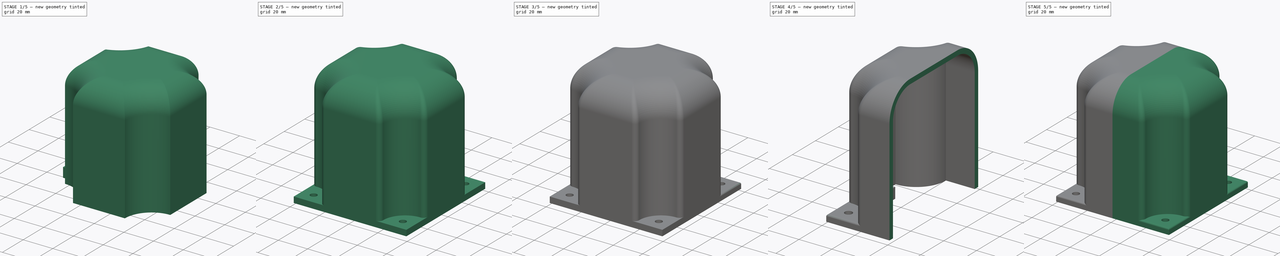
[diagram: build sequence overview — one tinted view per stage of 5, left to right]
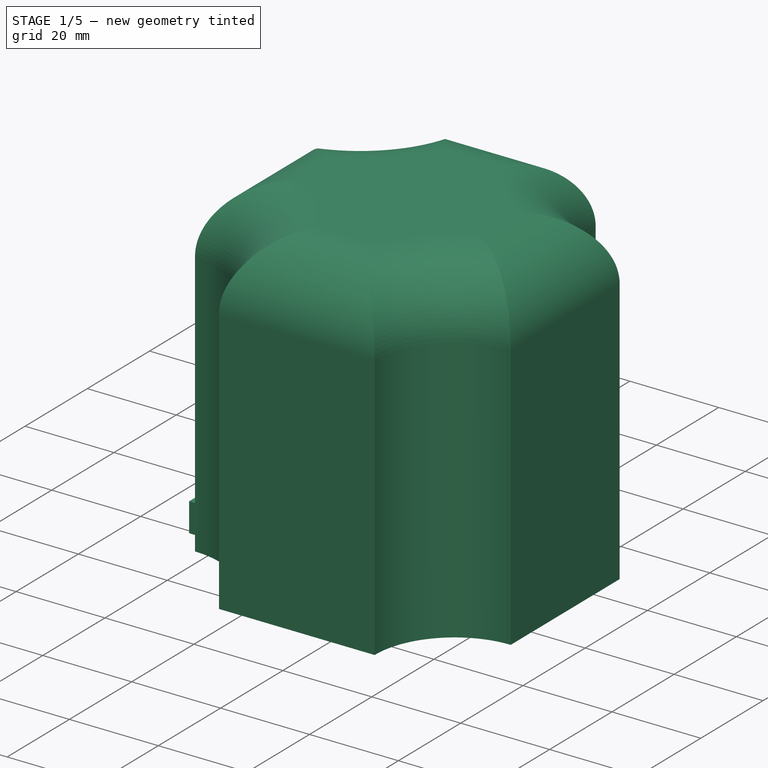
[diagram: stage 1 of 5 — iso view after this stage's code; geometry added in this stage tinted green]
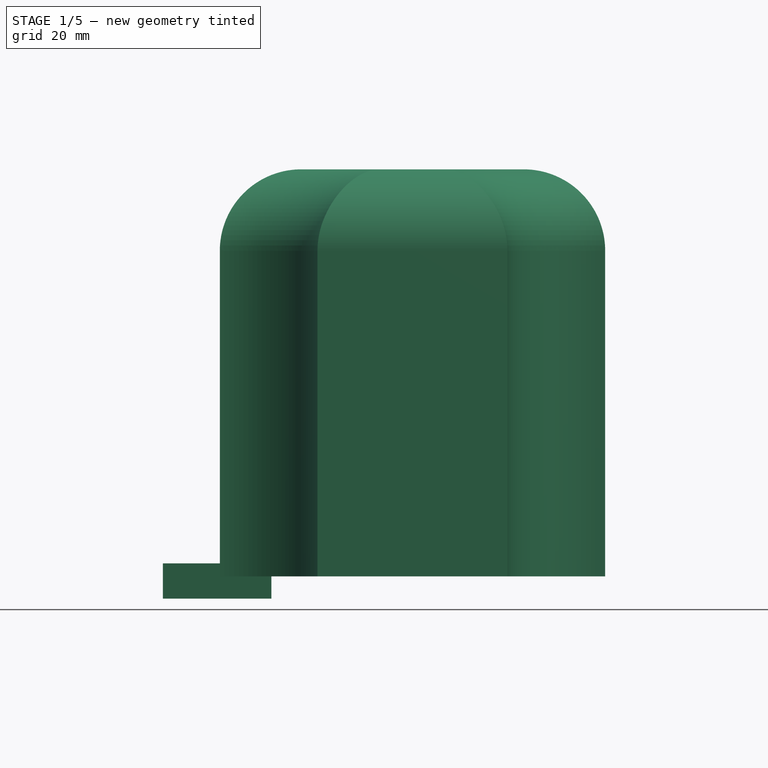
[diagram: stage 1 of 5 — front view after this stage's code; geometry added in this stage tinted green]
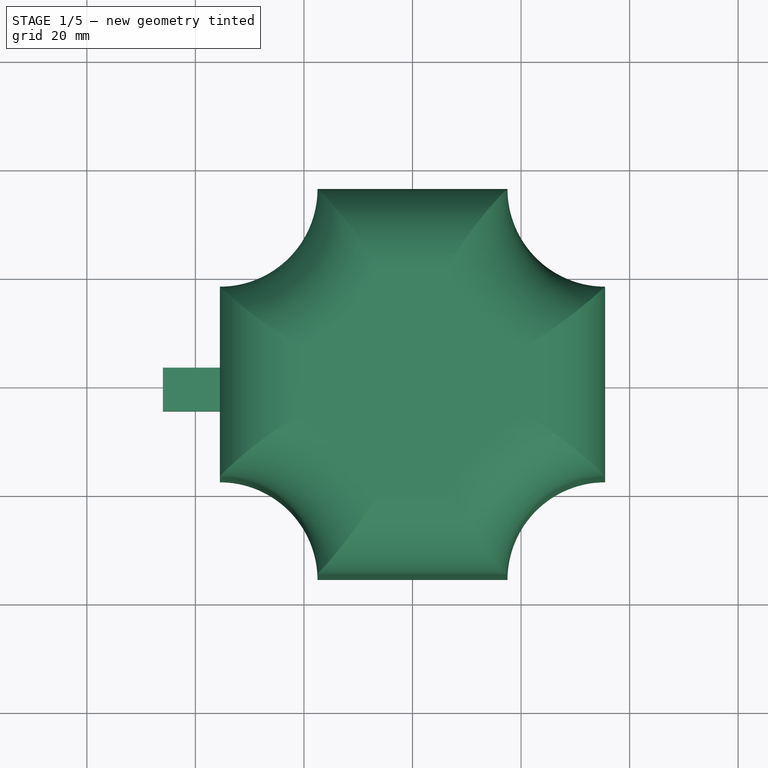
[diagram: stage 1 of 5 — top view after this stage's code; geometry added in this stage tinted green]
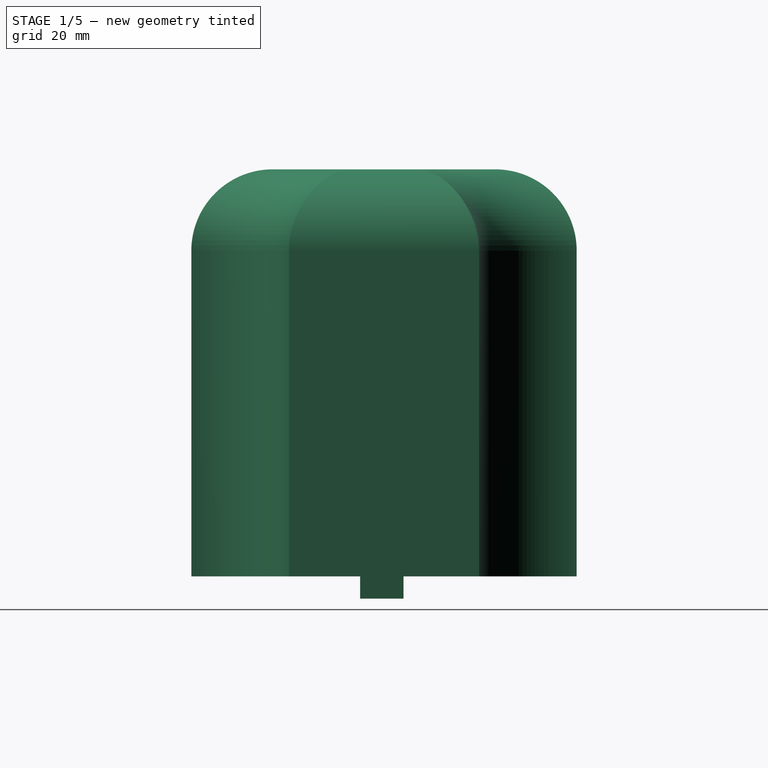
[diagram: stage 1 of 5 — right view after this stage's code; geometry added in this stage tinted green]
FCSTD DOCUMENT  (FreeCAD 0.18.4R)
Label: cover
License: All rights reserved
LicenseURL: http://en.wikipedia.org/wiki/All_rights_reserved
objects: PartDesign::Fillet×8, Sketcher::SketchObject×4, PartDesign::Pad×2, PartDesign::Pocket×2, PartDesign::Thickness×1, PartDesign::Body×1, Part::Mirroring×1, Part::Box×1, Part::Cut×1, Part::Fillet×1
note: 26 computed .brp shape members not serialized (recipe doc carries the construction recipe); baked Part::Feature solids carry a one-line shape summary decoded from their .brp

FEATURE [Sketcher::SketchObject] Sketch
  MapMode = 5
  Support = -> [XY_Plane]
  sketch-geometry (8):
    g0: LineSegment StartX=-17.5 StartY=35.5 StartZ=0 EndX=17.5 EndY=35.5 EndZ=0
    g1: LineSegment StartX=35.5 StartY=17.5 StartZ=0 EndX=35.5 EndY=-17.5 EndZ=0
    g2: LineSegment StartX=17.5 StartY=-35.5 StartZ=0 EndX=-17.5 EndY=-35.5 EndZ=0
    g3: LineSegment StartX=-35.5 StartY=17.5 StartZ=0 EndX=-35.5 EndY=-17.5 EndZ=0
    g4: ArcOfCircle CenterX=-35.5 CenterY=35.5 CenterZ=0 NormalX=0 NormalY=0 NormalZ=1 AngleXU=0 Radius=18 StartAngle=4.71239 EndAngle=6.28319
    g5: ArcOfCircle CenterX=35.5 CenterY=35.5 CenterZ=0 NormalX=0 NormalY=0 NormalZ=1 AngleXU=0 Radius=18 StartAngle=3.14159 EndAngle=4.71239
    g6: ArcOfCircle CenterX=35.5 CenterY=-35.5 CenterZ=0 NormalX=0 NormalY=0 NormalZ=1 AngleXU=0 Radius=18 StartAngle=1.5708 EndAngle=3.14159
    g7: ArcOfCircle CenterX=-35.5 CenterY=-35.5 CenterZ=0 NormalX=0 NormalY=0 NormalZ=1 AngleXU=0 Radius=18 StartAngle=2.217e-13 EndAngle=1.5708
  constraints (24):
    c: Horizontal(g0)
    c: Vertical(g3)
    c: Symmetric(g0,g2,g-1)
    c: Equal(g0,g2)
    c: Equal(g2,g1)
    c: Equal(g1,g3)
    c: Symmetric(g1,g3,g-1)
    c: Symmetric(g1,g1,g-1)
    c: Symmetric(g2,g2,g-2)
    c: Coincident(g4,g3)
    c: Coincident(g4,g0)
    c: Coincident(g5,g0)
    c: Coincident(g5,g1)
    c: Coincident(g6,g1)
    c: Coincident(g6,g2)
    c: Coincident(g7,g2)
    c: Coincident(g7,g3)
    c: Equal(g7,g6)
    c: Equal(g6,g5)
    c: Equal(g5,g4)
    c: Vertical(g5,g1)
    c: Horizontal(g6,g2)
    c: DistanceY(g1,g5) = 18
    c: DistanceY(g1,g1) = 35
FEATURE [PartDesign::Pad] Pad
  Length = 75
  Length2 = 100
  Profile = -> Sketch
  Type = 0
FEATURE [PartDesign::Fillet] Fillet
  Base = -> Pad [Face10]
  BaseFeature = -> Pad
  Radius = 15
FEATURE [Part::Box] Box  label="Cube"
  AttacherType = Attacher::AttachEngine3D
  Height = 6.5
  Length = 20
  Placement = pos=(-46,-4.4,-4.1) rot=(0,0,1;0rad)
  Width = 8
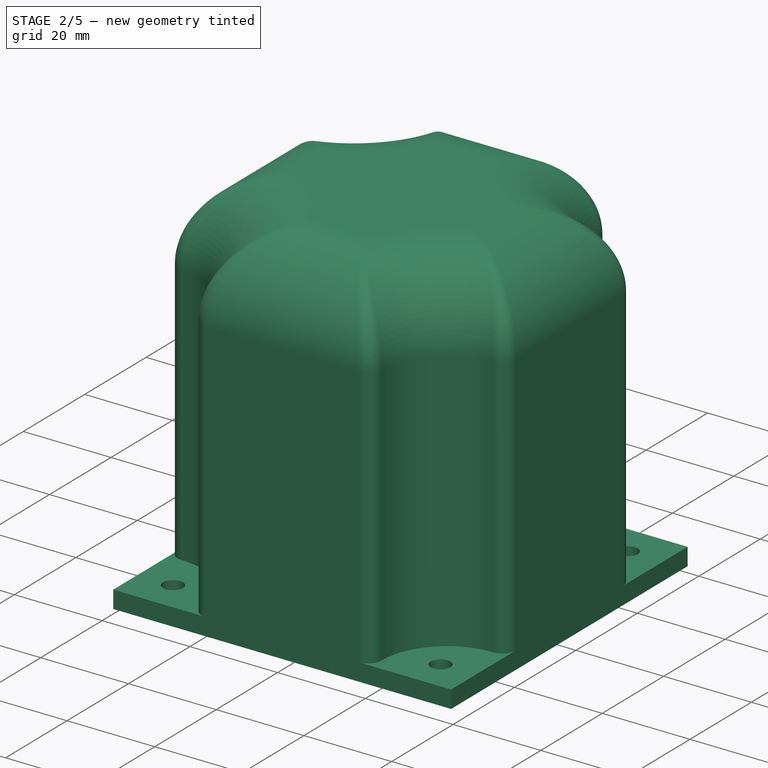
[diagram: stage 2 of 5 — iso view after this stage's code; geometry added in this stage tinted green]
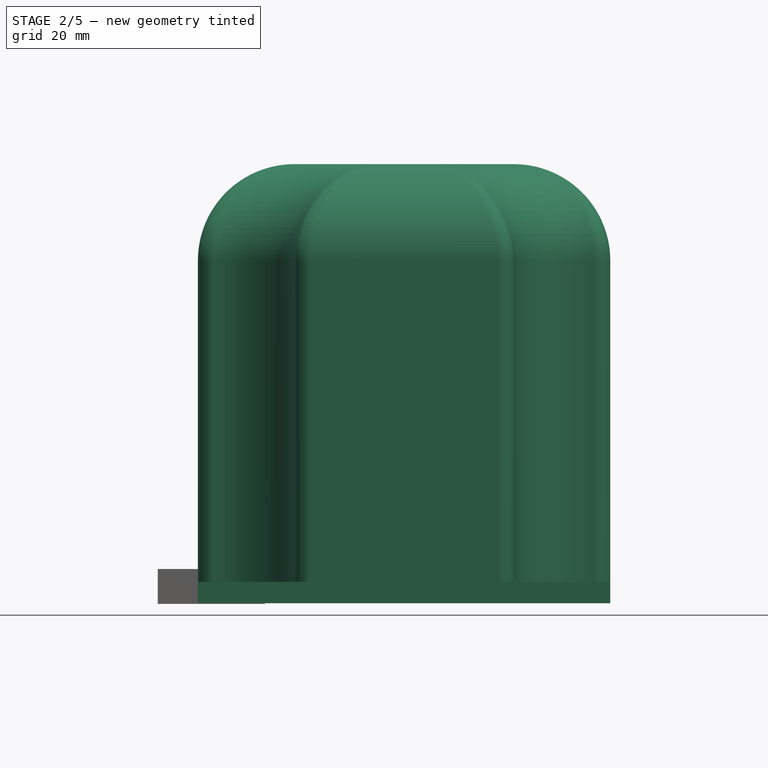
[diagram: stage 2 of 5 — front view after this stage's code; geometry added in this stage tinted green]
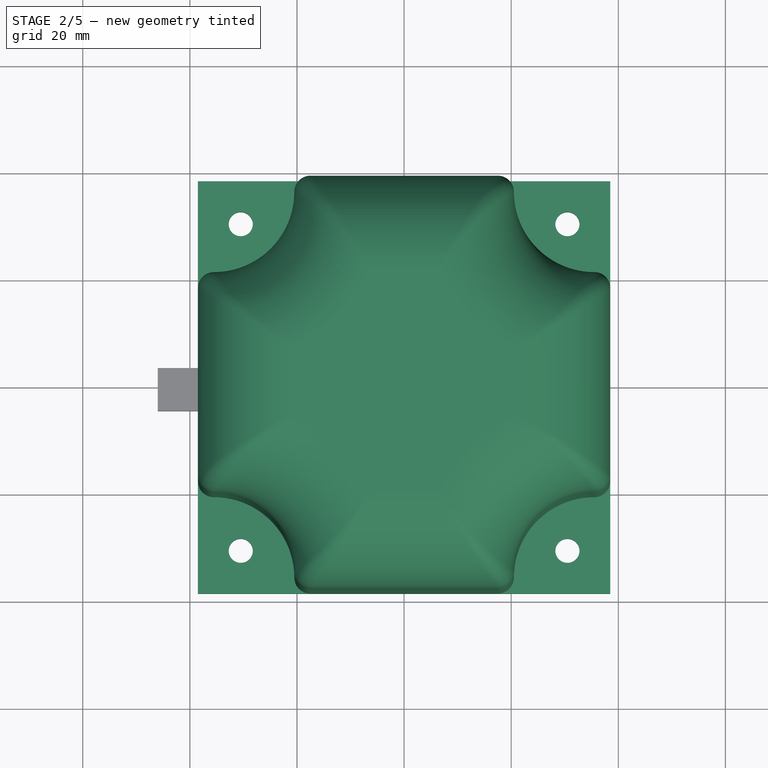
[diagram: stage 2 of 5 — top view after this stage's code; geometry added in this stage tinted green]
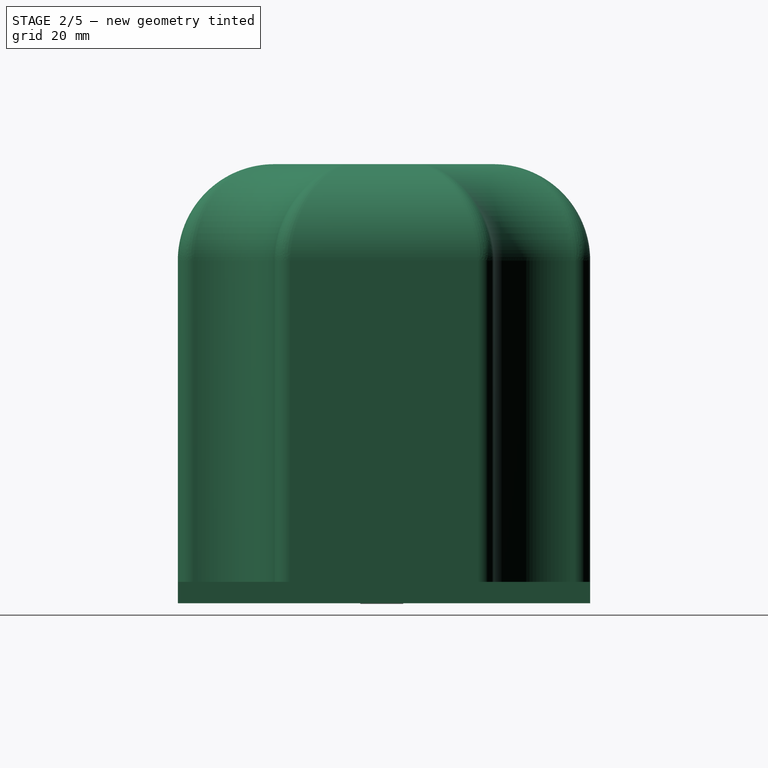
[diagram: stage 2 of 5 — right view after this stage's code; geometry added in this stage tinted green]
FEATURE [PartDesign::Thickness] Thickness
  Base = -> Fillet [Face4]
  BaseFeature = -> Fillet
  Join = 0
  Mode = 0
  Value = 3
FEATURE [Sketcher::SketchObject] Sketch001
  ExternalGeometry = -> [Thickness]
  MapMode = 5
  Placement = pos=(0,0,0) rot=(1,0,0;3.14159rad)
  Support = -> [Thickness]
  expr: Constraints[34] = Sketch.Constraints[23]
  expr: Constraints[33] = Sketch.Constraints[22]
  sketch-geometry (12):
    g0: LineSegment StartX=-38.5 StartY=38.5 StartZ=0 EndX=38.5 EndY=38.5 EndZ=0
    g1: LineSegment StartX=38.5 StartY=38.5 StartZ=0 EndX=38.5 EndY=-38.5 EndZ=0
    g2: LineSegment StartX=38.5 StartY=-38.5 StartZ=0 EndX=-38.5 EndY=-38.5 EndZ=0
    g3: LineSegment StartX=-38.5 StartY=-38.5 StartZ=0 EndX=-38.5 EndY=38.5 EndZ=0
    g4: LineSegment StartX=-17.5 StartY=35.5 StartZ=0 EndX=17.5 EndY=35.5 EndZ=0
    g5: LineSegment StartX=35.5 StartY=17.5 StartZ=0 EndX=35.5 EndY=-17.5 EndZ=0
    g6: LineSegment StartX=17.5 StartY=-35.5 StartZ=0 EndX=-17.5 EndY=-35.5 EndZ=0
    g7: LineSegment StartX=-35.5 StartY=17.5 StartZ=0 EndX=-35.5 EndY=-17.5 EndZ=0
    g8: ArcOfCircle CenterX=-35.5 CenterY=35.5 CenterZ=0 NormalX=0 NormalY=0 NormalZ=1 AngleXU=0 Radius=18 StartAngle=4.71239 EndAngle=6.28319
    g9: ArcOfCircle CenterX=35.5 CenterY=35.5 CenterZ=0 NormalX=0 NormalY=0 NormalZ=1 AngleXU=0 Radius=18 StartAngle=3.14159 EndAngle=4.71239
    g10: ArcOfCircle CenterX=35.5 CenterY=-35.5 CenterZ=0 NormalX=0 NormalY=0 NormalZ=1 AngleXU=0 Radius=18 StartAngle=1.5708 EndAngle=3.14159
    g11: ArcOfCircle CenterX=-35.5 CenterY=-35.5 CenterZ=0 NormalX=0 NormalY=0 NormalZ=1 AngleXU=0 Radius=18 StartAngle=2.217e-13 EndAngle=1.5708
  constraints (35):
    c: Coincident(g0,g1)
    c: Coincident(g1,g2)
    c: Coincident(g2,g3)
    c: Coincident(g3,g0)
    c: Horizontal(g0)
    c: Horizontal(g2)
    c: Vertical(g1)
    c: Vertical(g3)
    c: PointOnObject(g-3,g1)
    c: PointOnObject(g-4,g2)
    c: Symmetric(g1,g0,g-1)
    c: Horizontal(g4)
    c: Vertical(g7)
    c: Symmetric(g4,g6,g-1)
    c: Equal(g4,g6)
    c: Equal(g6,g5)
    c: Equal(g5,g7)
    c: Symmetric(g5,g7,g-1)
    c: Symmetric(g5,g5,g-1)
    c: Symmetric(g6,g6,g-2)
    c: Coincident(g8,g7)
    c: Coincident(g8,g4)
    c: Coincident(g9,g4)
    c: Coincident(g9,g5)
    c: Coincident(g10,g5)
    c: Coincident(g10,g6)
    c: Coincident(g11,g6)
    c: Coincident(g11,g7)
    c: Equal(g11,g10)
    c: Equal(g10,g9)
    c: Equal(g9,g8)
    c: Vertical(g9,g5)
    c: Horizontal(g10,g6)
    c: DistanceY(g5,g9) = 18
    c: DistanceY(g5,g5) = 35
FEATURE [PartDesign::Pad] Pad002
  BaseFeature = -> Thickness
  Length = 4
  Length2 = 100
  Profile = -> Sketch001
  Type = 0
FEATURE [Sketcher::SketchObject] Sketch002
  ExternalGeometry = -> [Pad002]
  MapMode = 5
  Placement = pos=(0,0,-4) rot=(1,0,0;3.14159rad)
  Support = -> [Pad002]
  sketch-geometry (4):
    g0: Circle CenterX=-30.5 CenterY=30.5 CenterZ=0 NormalX=0 NormalY=0 NormalZ=1 AngleXU=0 Radius=2.25
    g1: Circle CenterX=30.5 CenterY=30.5 CenterZ=0 NormalX=0 NormalY=0 NormalZ=1 AngleXU=0 Radius=2.25
    g2: Circle CenterX=30.5 CenterY=-30.5 CenterZ=0 NormalX=0 NormalY=0 NormalZ=1 AngleXU=0 Radius=2.25
    g3: Circle CenterX=-30.5 CenterY=-30.5 CenterZ=0 NormalX=0 NormalY=0 NormalZ=1 AngleXU=0 Radius=2.25
  constraints (9):
    c: Equal(g0,g1)
    c: Equal(g1,g2)
    c: Equal(g2,g3)
    c: Symmetric(g1,g0,g-2)
    c: Symmetric(g1,g2,g-1)
    c: Symmetric(g2,g3,g-2)
    c: Diameter(g1) = 4.5
    c: DistanceX(g1,g-4) = 8
    c: DistanceY(g1,g-4) = 8
FEATURE [PartDesign::Pocket] Pocket
  BaseFeature = -> Pad002
  Length = 5
  Length2 = 100
  Profile = -> Sketch002
  Type = 1
FEATURE [PartDesign::Fillet] Fillet001
  Base = -> Pocket [Edge65]
  BaseFeature = -> Pocket
  Radius = 0.1
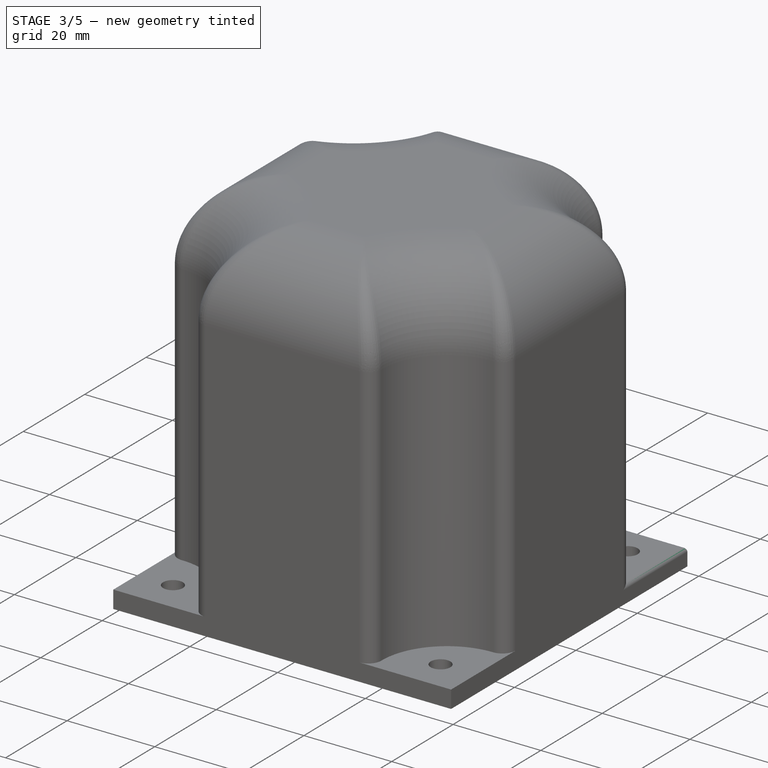
[diagram: stage 3 of 5 — iso view after this stage's code; geometry added in this stage tinted green]
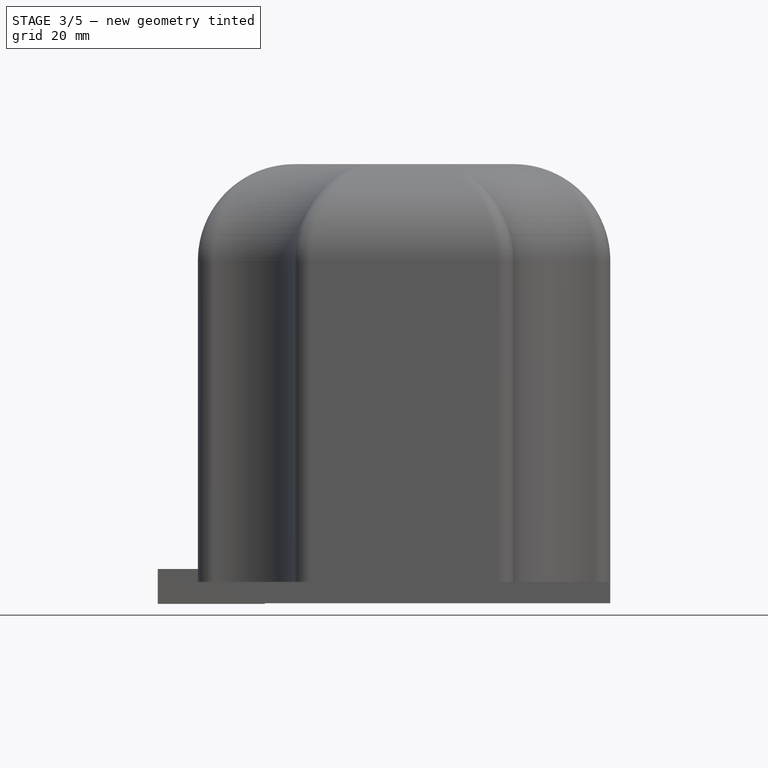
[diagram: stage 3 of 5 — front view after this stage's code; geometry added in this stage tinted green]
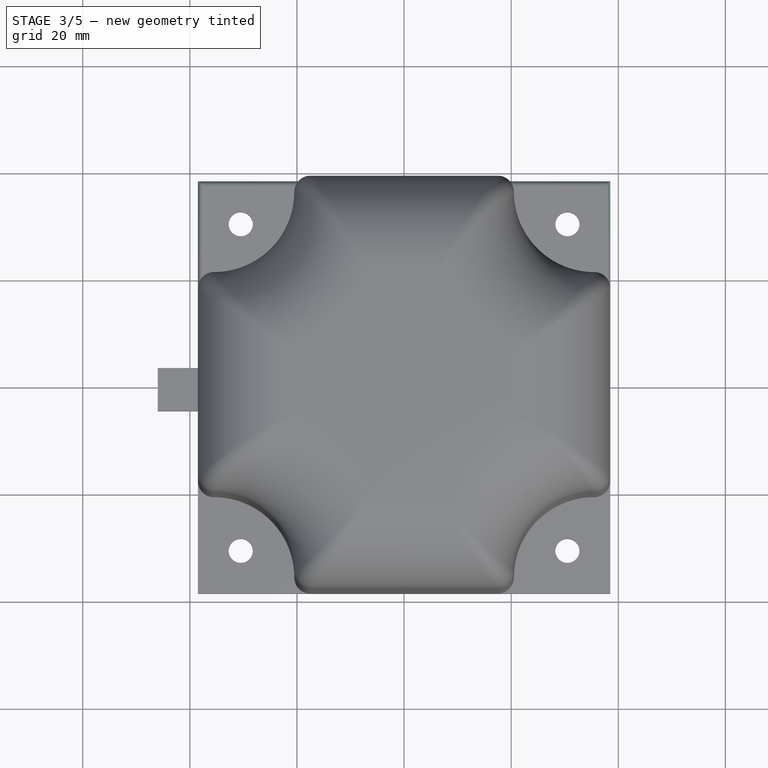
[diagram: stage 3 of 5 — top view after this stage's code; geometry added in this stage tinted green]
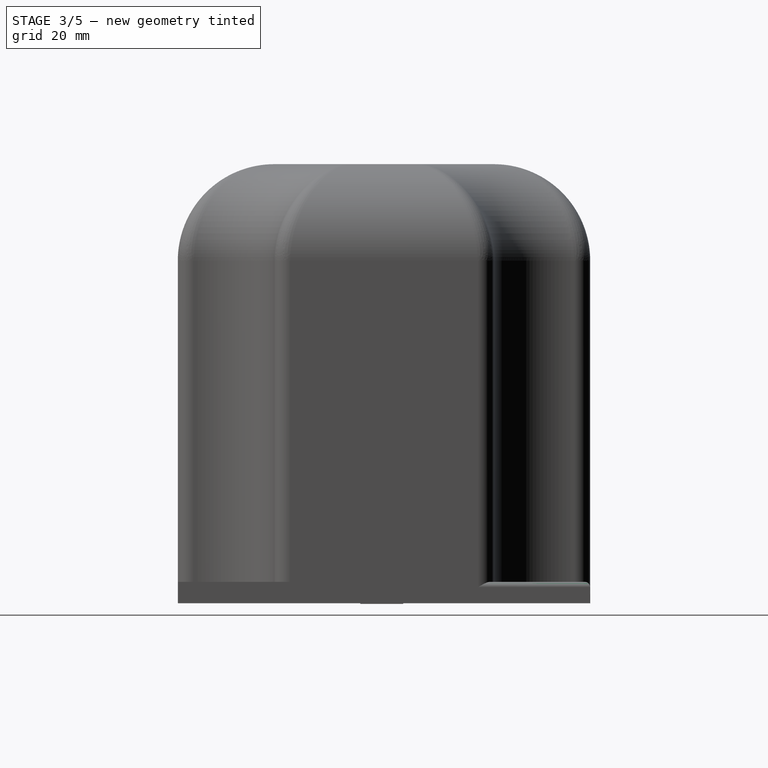
[diagram: stage 3 of 5 — right view after this stage's code; geometry added in this stage tinted green]
FEATURE [PartDesign::Fillet] Fillet002
  Base = -> Fillet001 [Edge23]
  BaseFeature = -> Fillet001
  Radius = 1
FEATURE [PartDesign::Fillet] Fillet003
  Base = -> Fillet002 [Edge49]
  BaseFeature = -> Fillet002
  Radius = 0.1
FEATURE [PartDesign::Fillet] Fillet004
  Base = -> Fillet003 [Edge24]
  BaseFeature = -> Fillet003
  Radius = 1
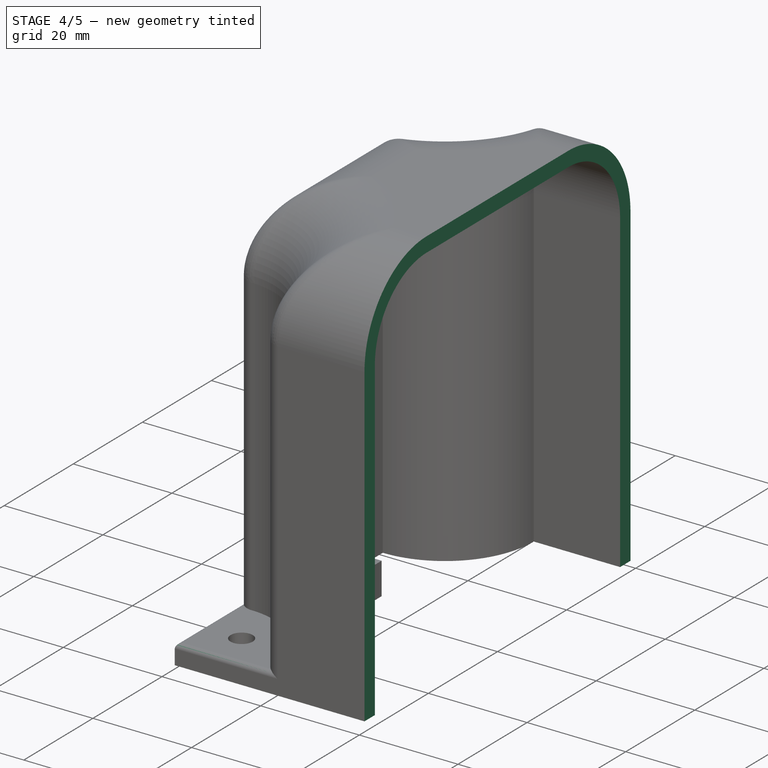
[diagram: stage 4 of 5 — iso view after this stage's code; geometry added in this stage tinted green]
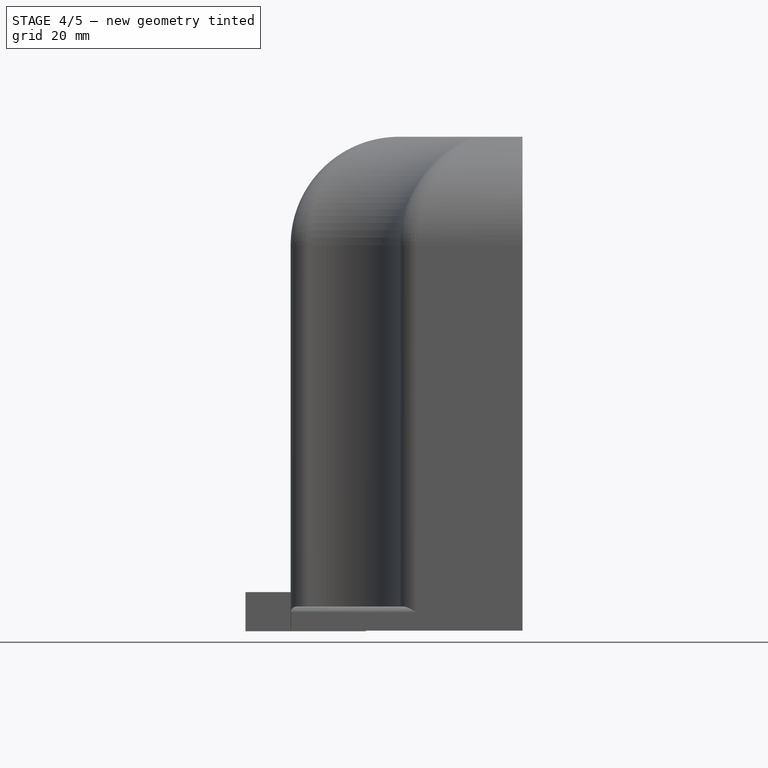
[diagram: stage 4 of 5 — front view after this stage's code; geometry added in this stage tinted green]
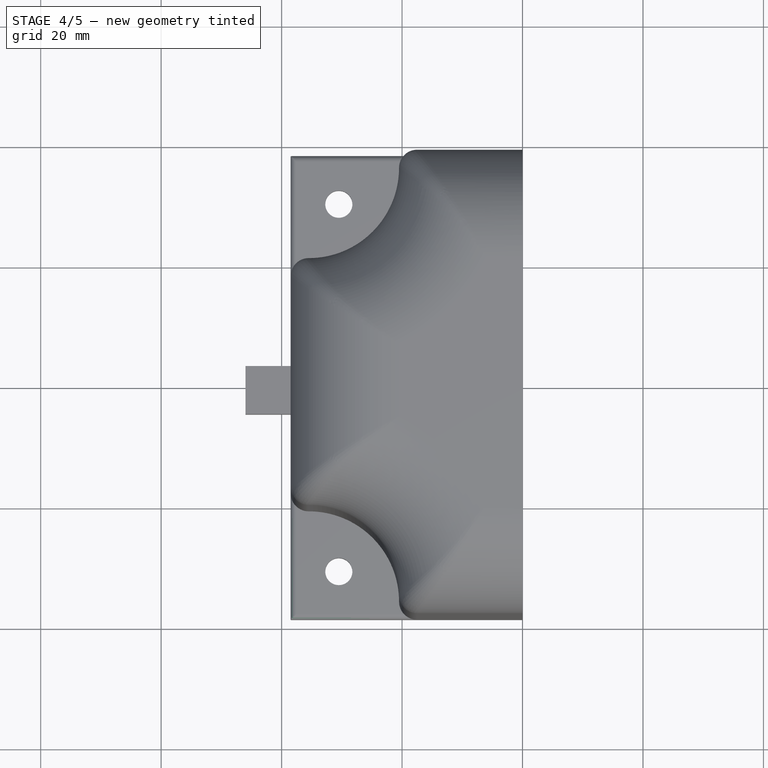
[diagram: stage 4 of 5 — top view after this stage's code; geometry added in this stage tinted green]
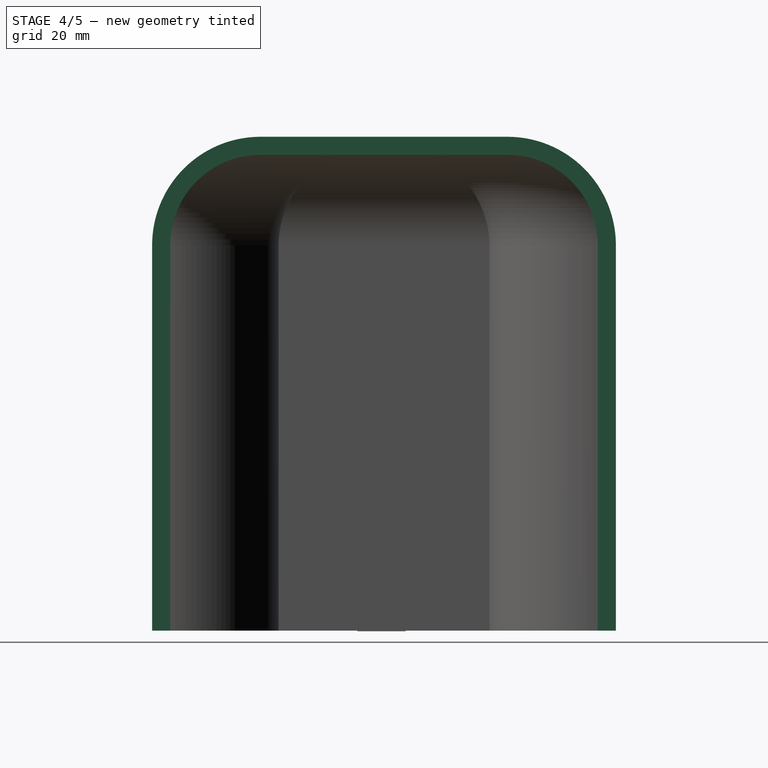
[diagram: stage 4 of 5 — right view after this stage's code; geometry added in this stage tinted green]
FEATURE [PartDesign::Fillet] Fillet005
  Base = -> Fillet004 [Edge6]
  BaseFeature = -> Fillet004
  Radius = 0.1
FEATURE [PartDesign::Fillet] Fillet006
  Base = -> Fillet005 [Edge44]
  BaseFeature = -> Fillet005
  Radius = 0.1
FEATURE [PartDesign::Fillet] Fillet007
  Base = -> Fillet006 [Edge26]
  BaseFeature = -> Fillet006
  Radius = 1
FEATURE [Sketcher::SketchObject] Sketch003
  MapMode = 5
  Placement = pos=(0,-38.5,0) rot=(1,0,0;1.5708rad)
  Support = -> [Fillet007]
  sketch-geometry (4):
    g0: LineSegment StartX=0 StartY=124.887 StartZ=0 EndX=95.5154 EndY=124.887 EndZ=0
    g1: LineSegment StartX=95.5154 StartY=124.887 StartZ=0 EndX=95.5154 EndY=-22.0362 EndZ=0
    g2: LineSegment StartX=95.5154 StartY=-22.0362 StartZ=0 EndX=0 EndY=-22.0362 EndZ=0
    g3: LineSegment StartX=0 StartY=-22.0362 StartZ=0 EndX=0 EndY=124.887 EndZ=0
  constraints (9):
    c: Coincident(g0,g1)
    c: Coincident(g1,g2)
    c: Coincident(g2,g3)
    c: Coincident(g3,g0)
    c: Horizontal(g0)
    c: Horizontal(g2)
    c: Vertical(g1)
    c: Vertical(g3)
    c: PointOnObject(g0,g-2)
FEATURE [PartDesign::Pocket] Pocket001
  BaseFeature = -> Fillet007
  Length = 5
  Length2 = 100
  Profile = -> Sketch003
  Type = 1
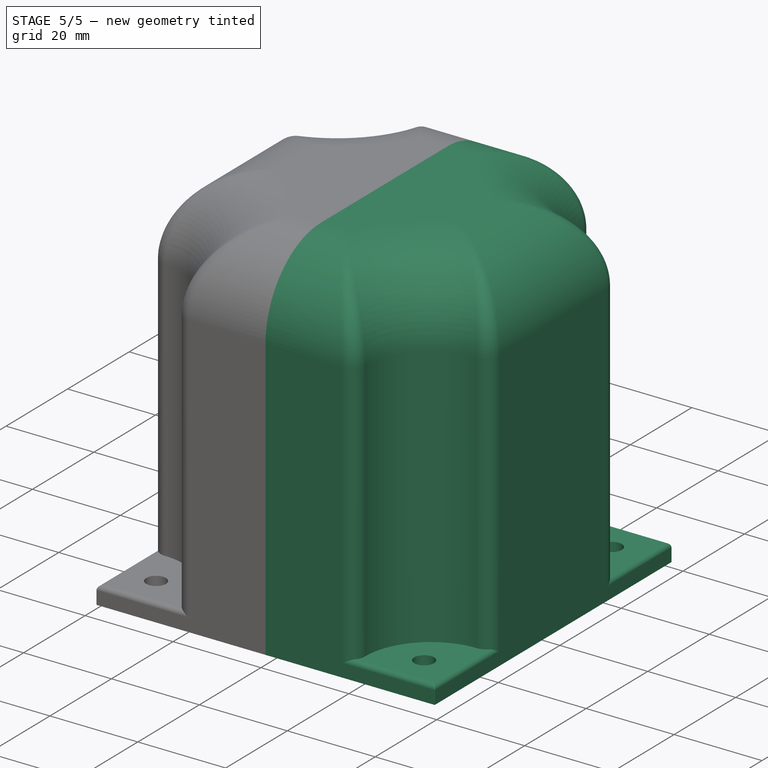
[diagram: stage 5 of 5 — iso view after this stage's code; geometry added in this stage tinted green]
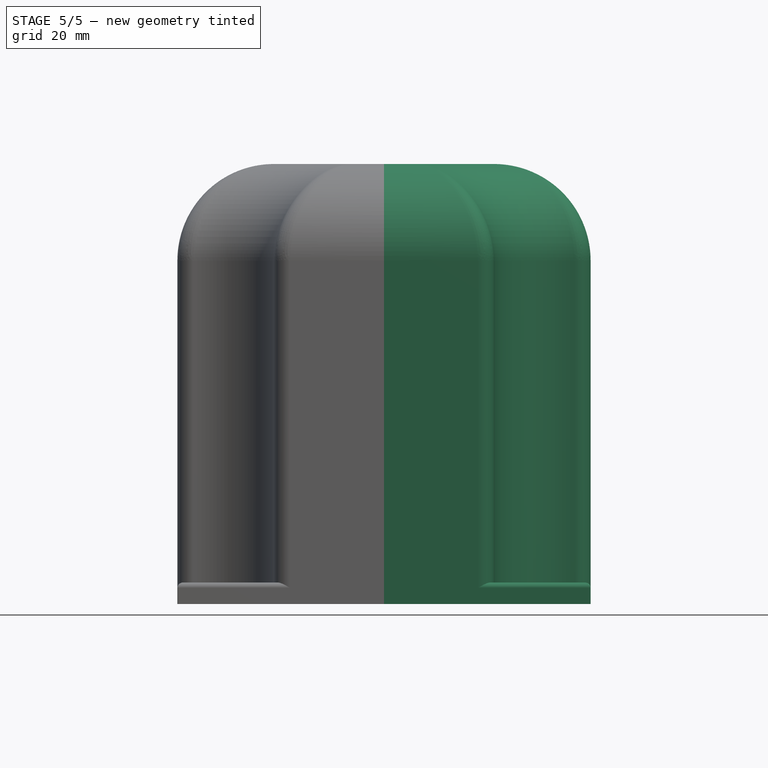
[diagram: stage 5 of 5 — front view after this stage's code; geometry added in this stage tinted green]
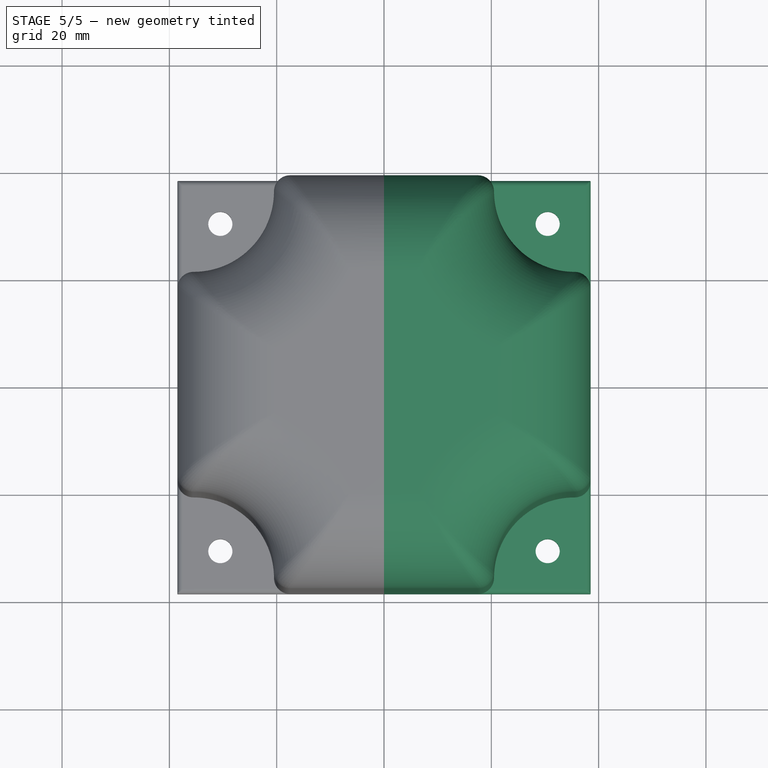
[diagram: stage 5 of 5 — top view after this stage's code; geometry added in this stage tinted green]
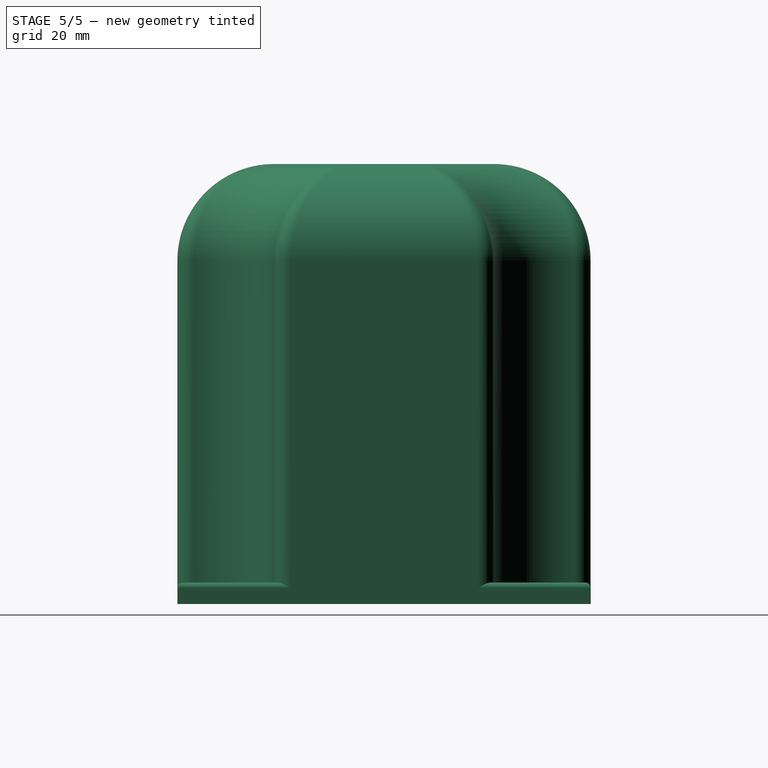
[diagram: stage 5 of 5 — right view after this stage's code; geometry added in this stage tinted green]
FEATURE [PartDesign::Body] Body
  Group = -> [Sketch,Pad,Fillet,Thickness,Sketch001,Pad002,Sketch002,Pocket,Fillet001,Fillet002,Fillet003,Fillet004,Fillet005,Fillet006,Fillet007,Sketch003,Pocket001]
  Origin = -> Origin
  Tip = -> Pocket001
FEATURE [Part::Mirroring] Part__Mirroring  label="Body (Mirror #1)"
  Base = (1.90735e-06,-3.1903e-12,27)
  Normal = (1,0,-1.19209e-07)
  Source = -> Body
FEATURE [Part::Cut] Cut
  Base = -> Body
  Tool = -> Box
FEATURE [Part::Fillet] Fillet008
  Base = -> Cut
  Edges = 2 edges r=1: [Edge87,Edge124]
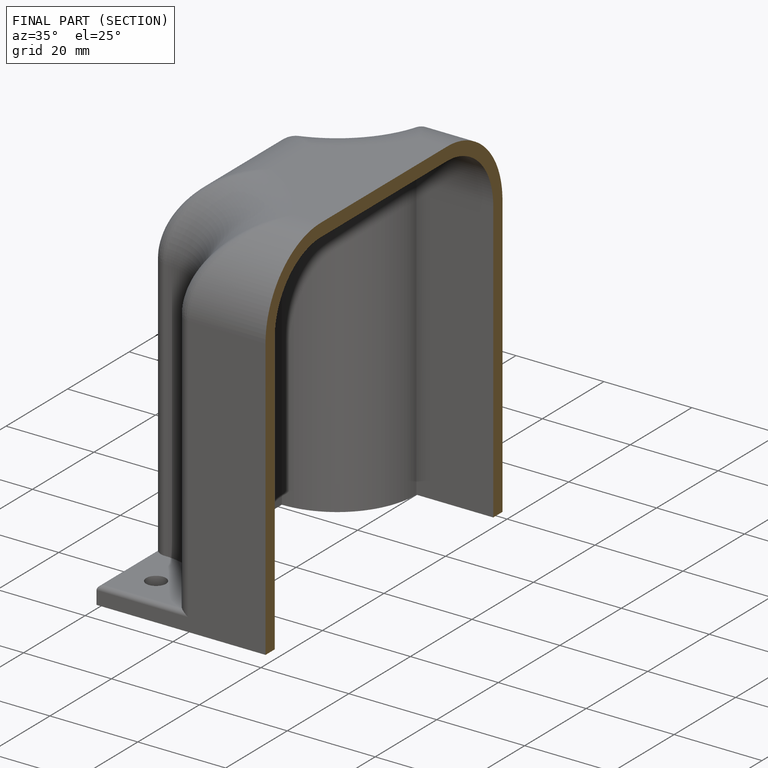
[diagram: finished part — half-section view (interior)]
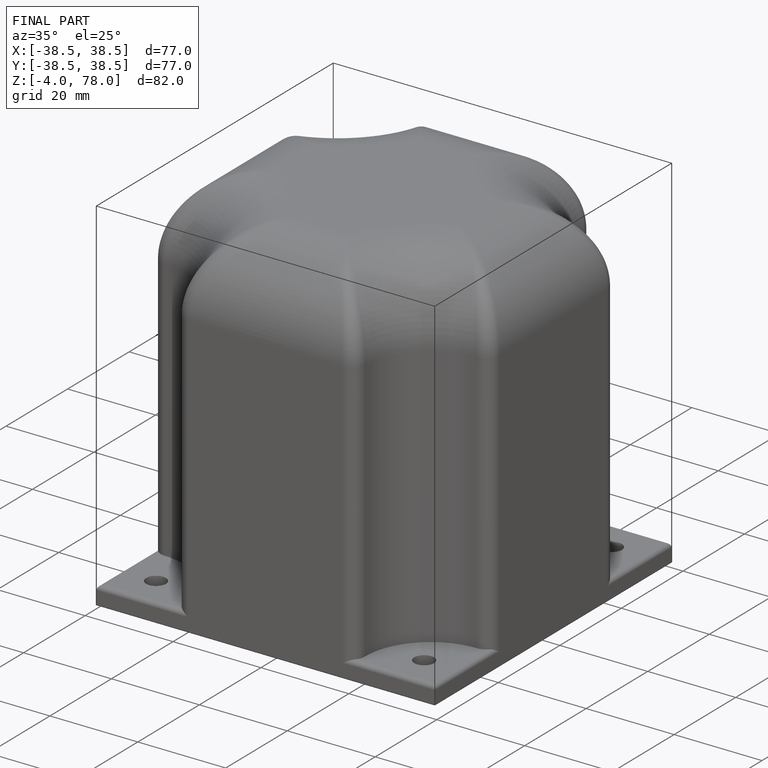
[diagram: finished part — iso view with bounding-box wireframe]
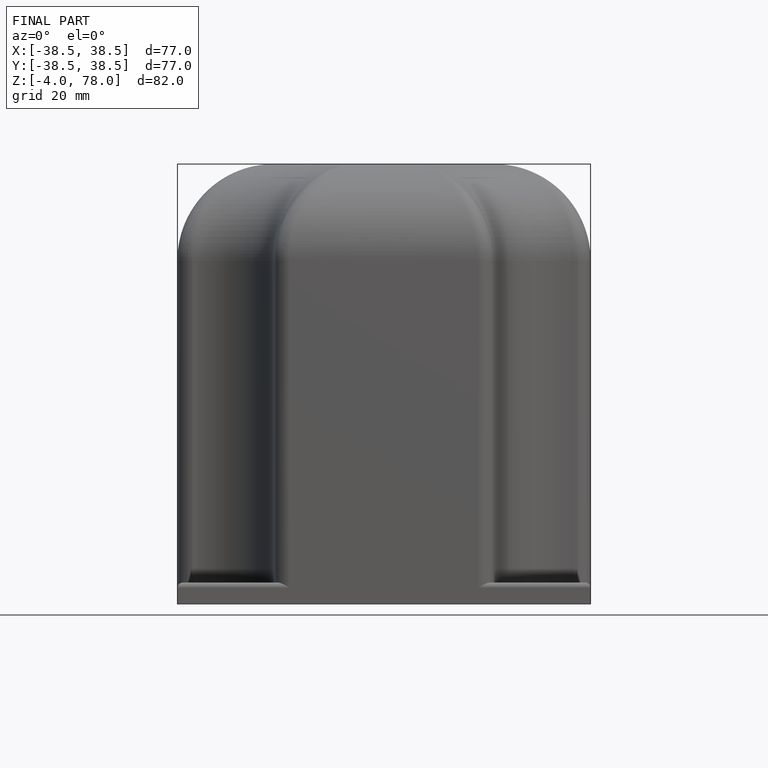
[diagram: finished part — front view with bounding-box wireframe]
